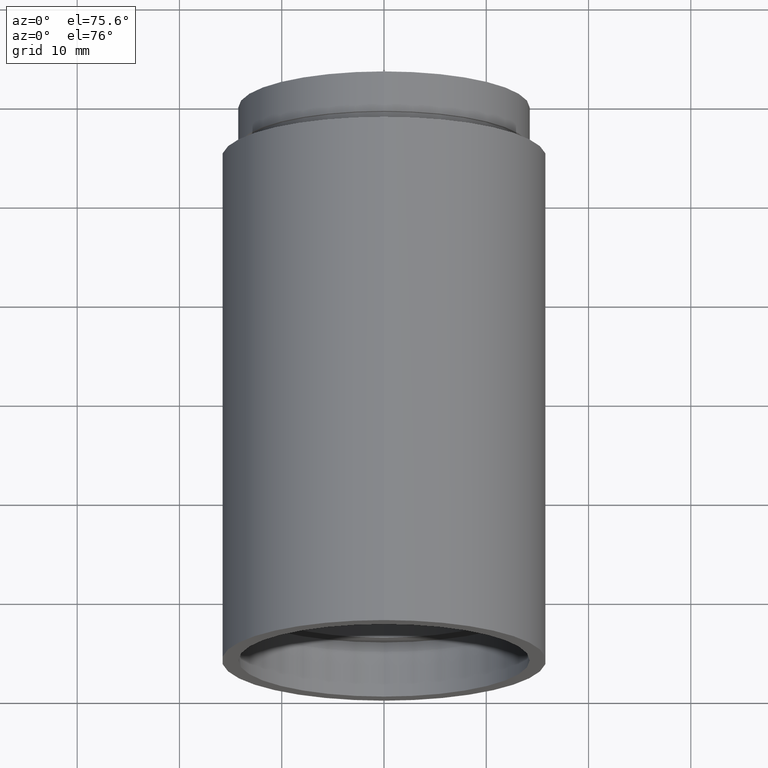
[diagram: clean part render]
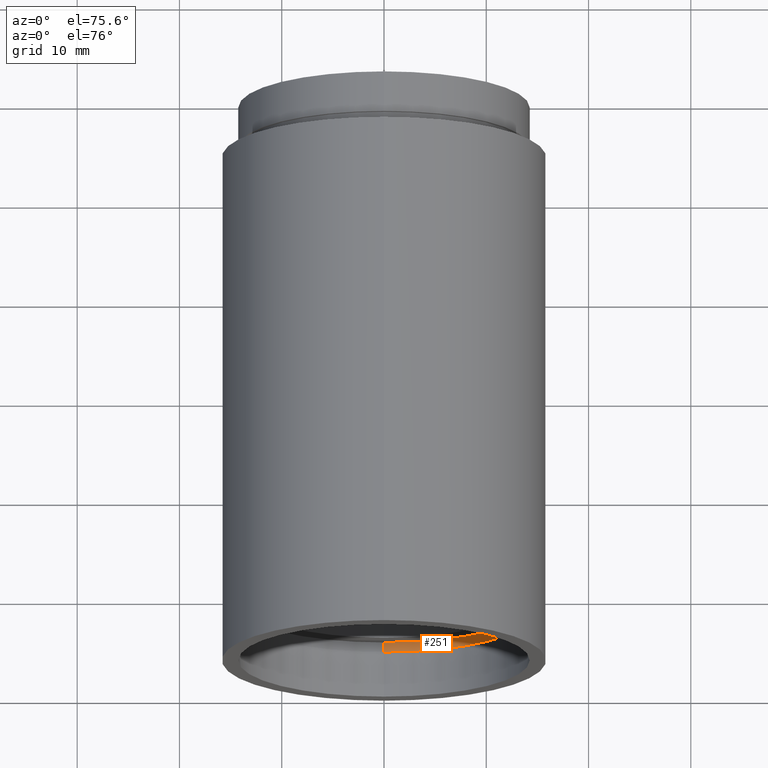
[diagram: same view with one face highlighted and labeled with its STEP entity id]
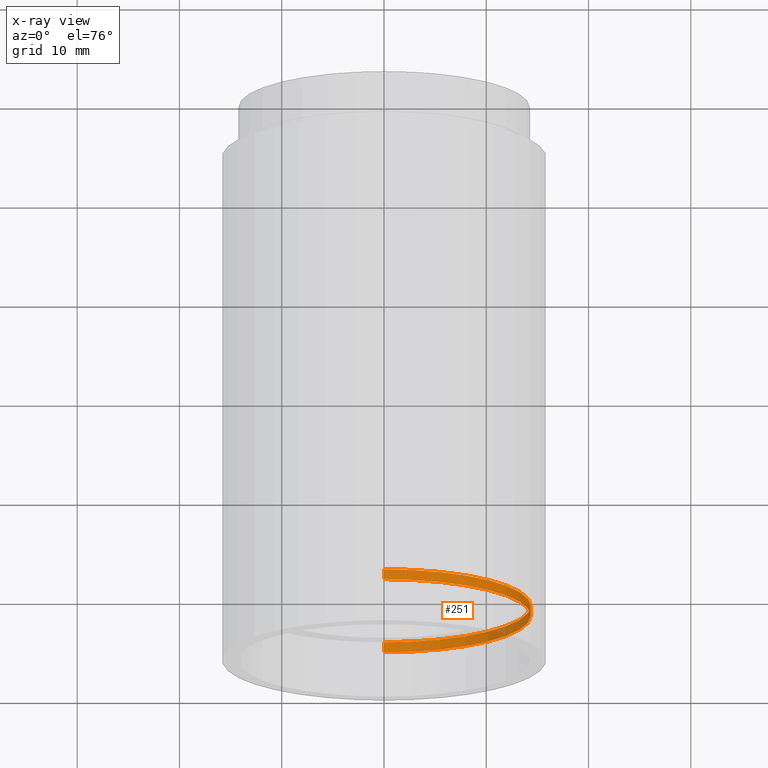
[diagram: x-ray of the same camera — body ghosted, the highlighted face saturated]
A machine part, auxiliary view. The second image highlights one B-rep face of the part: STEP entity #251.
The next image is the same camera in x-ray: the body ghosted, the highlighted face saturated — about 13% of this face is hidden behind the body in this view.
In plain terms, the highlighted cylindrical surface (partial cylindrical patch) has radius 14.35 mm, axis along (-0, 1, -0).
Its self-contained STEP definition (entity closure, byte-faithful):
#11 = VECTOR ( 'NONE', #196, 1000.000000000000000 ) ;
#19 = ORIENTED_EDGE ( 'NONE', *, *, #236, .T. ) ;
#22 = CIRCLE ( 'NONE', #143, 14.35000000000001900 ) ;
#72 = EDGE_CURVE ( 'NONE', #266, #425, #298, .T. ) ;
#87 = AXIS2_PLACEMENT_3D ( 'NONE', #341, #490, #198 ) ;
#90 = DIRECTION ( 'NONE',  ( -0.0000000000000000000, 1.000000000000000000, -0.0000000000000000000 ) ) ;
#98 = CARTESIAN_POINT ( 'NONE',  ( 0.0000000000000000000, 161.3761669434274500, 14.35000000000001900 ) ) ;
#142 = CARTESIAN_POINT ( 'NONE',  ( 1.757368156776454300E-015, 5.499999999999976900, -14.35000000000001900 ) ) ;
#143 = AXIS2_PLACEMENT_3D ( 'NONE', #179, #424, #271 ) ;
#179 = CARTESIAN_POINT ( 'NONE',  ( 0.0000000000000000000, 4.499999999999976000, 0.0000000000000000000 ) ) ;
#187 = ORIENTED_EDGE ( 'NONE', *, *, #215, .T. ) ;
#189 = DIRECTION ( 'NONE',  ( -0.0000000000000000000, 1.000000000000000000, -0.0000000000000000000 ) ) ;
#196 = DIRECTION ( 'NONE',  ( -0.0000000000000000000, 1.000000000000000000, -0.0000000000000000000 ) ) ;
#198 = DIRECTION ( 'NONE',  ( 0.0000000000000000000, 0.0000000000000000000, 1.000000000000000000 ) ) ;
#209 = CARTESIAN_POINT ( 'NONE',  ( 0.0000000000000000000, 5.499999999999976900, 14.35000000000001900 ) ) ;
#215 = EDGE_CURVE ( 'NONE', #248, #526, #361, .T. ) ;
#236 = EDGE_CURVE ( 'NONE', #526, #425, #318, .T. ) ;
#248 = VERTEX_POINT ( 'NONE', #393 ) ;
#251 = ADVANCED_FACE ( 'NONE', ( #442 ), #347, .F. ) ;
#266 = VERTEX_POINT ( 'NONE', #274 ) ;
#271 = DIRECTION ( 'NONE',  ( 0.0000000000000000000, 0.0000000000000000000, 1.000000000000000000 ) ) ;
#274 = CARTESIAN_POINT ( 'NONE',  ( 1.757368156776454300E-015, 4.499999999999976000, -14.35000000000001900 ) ) ;
#298 = LINE ( 'NONE', #480, #502 ) ;
#305 = EDGE_CURVE ( 'NONE', #248, #266, #22, .T. ) ;
#318 = CIRCLE ( 'NONE', #87, 14.35000000000001900 ) ;
#341 = CARTESIAN_POINT ( 'NONE',  ( 0.0000000000000000000, 5.499999999999976900, 0.0000000000000000000 ) ) ;
#347 = CYLINDRICAL_SURFACE ( 'NONE', #514, 14.35000000000001900 ) ;
#349 = EDGE_LOOP ( 'NONE', ( #575, #485, #187, #19 ) ) ;
#361 = LINE ( 'NONE', #98, #11 ) ;
#393 = CARTESIAN_POINT ( 'NONE',  ( 0.0000000000000000000, 4.499999999999976000, 14.35000000000001900 ) ) ;
#419 = CARTESIAN_POINT ( 'NONE',  ( 0.0000000000000000000, 161.3761669434274500, 0.0000000000000000000 ) ) ;
#424 = DIRECTION ( 'NONE',  ( -0.0000000000000000000, 1.000000000000000000, -0.0000000000000000000 ) ) ;
#425 = VERTEX_POINT ( 'NONE', #142 ) ;
#442 = FACE_OUTER_BOUND ( 'NONE', #349, .T. ) ;
#480 = CARTESIAN_POINT ( 'NONE',  ( 1.757368156776454300E-015, 161.3761669434274500, -14.35000000000001900 ) ) ;
#485 = ORIENTED_EDGE ( 'NONE', *, *, #305, .F. ) ;
#490 = DIRECTION ( 'NONE',  ( -0.0000000000000000000, 1.000000000000000000, -0.0000000000000000000 ) ) ;
#502 = VECTOR ( 'NONE', #90, 1000.000000000000000 ) ;
#514 = AXIS2_PLACEMENT_3D ( 'NONE', #419, #189, #521 ) ;
#521 = DIRECTION ( 'NONE',  ( 0.0000000000000000000, 0.0000000000000000000, 1.000000000000000000 ) ) ;
#526 = VERTEX_POINT ( 'NONE', #209 ) ;
#575 = ORIENTED_EDGE ( 'NONE', *, *, #72, .F. ) ;